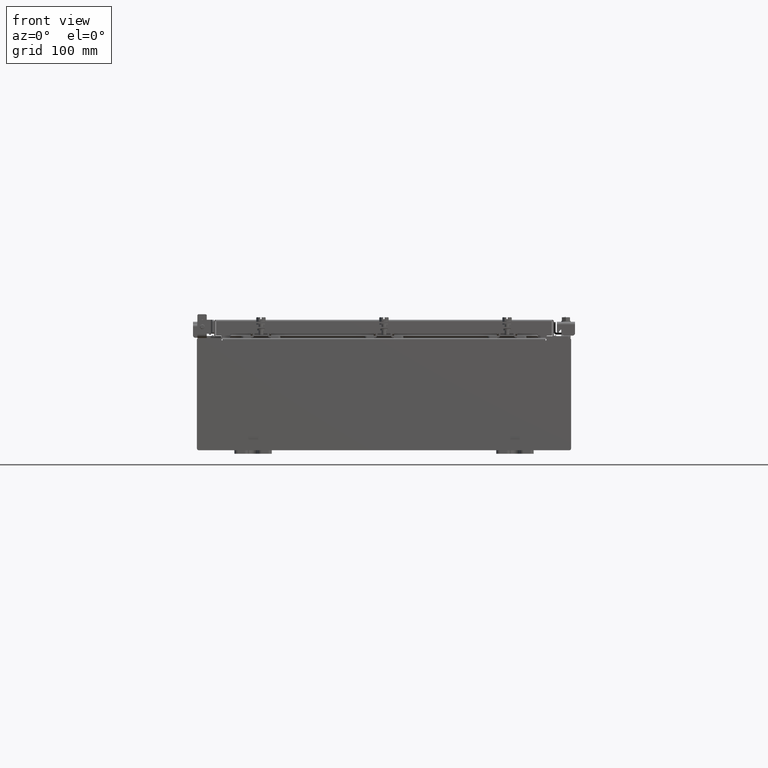
[diagram: clean part render]
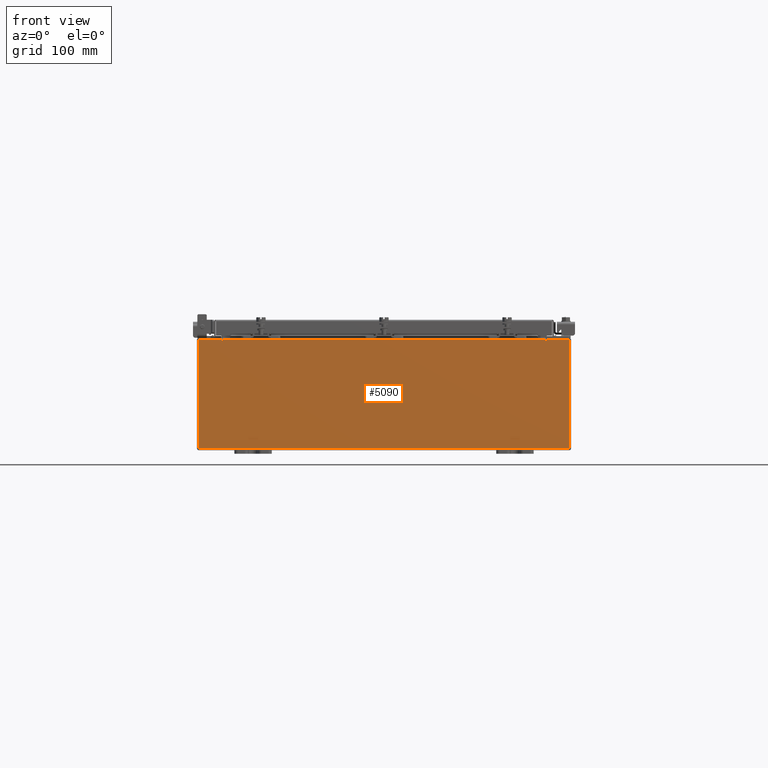
[diagram: same view with one face highlighted and labeled with its STEP entity id]
A machine part, front view. The second image highlights one B-rep face of the part: STEP entity #5090.
In plain terms, the highlighted planar face has unit normal (-0, 1, -0).
Its self-contained STEP definition (entity closure, byte-faithful):
#66 = CARTESIAN_POINT ( 'NONE',  ( -8.674549999999996400, -0.0000000000000000000, 0.0000000000000000000 ) ) ;
#95 = DIRECTION ( 'NONE',  ( 0.0000000000000000000, 0.0000000000000000000, 1.000000000000000000 ) ) ;
#1031 = EDGE_LOOP ( 'NONE', ( #14681, #19336, #18826, #15047, #22580, #20356, #11868, #18761, #17356, #20088, #7404, #10761 ) ) ;
#1147 = CIRCLE ( 'NONE', #15419, 0.01867500000000003900 ) ;
#1174 = EDGE_CURVE ( 'NONE', #9935, #20036, #18852, .T. ) ;
#1322 = CARTESIAN_POINT ( 'NONE',  ( -8.637200000000000000, 1.024442997624098700E-016, 2.912300000000000600 ) ) ;
#1450 = LINE ( 'NONE', #9222, #10359 ) ;
#1736 = VERTEX_POINT ( 'NONE', #20173 ) ;
#2021 = DIRECTION ( 'NONE',  ( 0.0000000000000000000, 0.0000000000000000000, -1.000000000000000000 ) ) ;
#2081 = LINE ( 'NONE', #1322, #20516 ) ;
#2098 = EDGE_CURVE ( 'NONE', #14059, #20036, #10599, .T. ) ;
#2452 = LINE ( 'NONE', #12720, #3009 ) ;
#2638 = VECTOR ( 'NONE', #7431, 39.37007874015748100 ) ;
#3009 = VECTOR ( 'NONE', #2021, 39.37007874015748100 ) ;
#3197 = LINE ( 'NONE', #5600, #2638 ) ;
#3630 = CARTESIAN_POINT ( 'NONE',  ( 8.674550000000000000, 0.0000000000000000000, 2.874950000000000600 ) ) ;
#3765 = CARTESIAN_POINT ( 'NONE',  ( 8.637200000000000000, 0.0000000000000000000, 2.912300000000000600 ) ) ;
#3769 = LINE ( 'NONE', #5876, #8538 ) ;
#3933 = CARTESIAN_POINT ( 'NONE',  ( 9.925300000000000000, 0.0000000000000000000, -2.925299999999999600 ) ) ;
#4175 = CARTESIAN_POINT ( 'NONE',  ( 0.0000000000000000000, 0.0000000000000000000, 0.0000000000000000000 ) ) ;
#4790 = CARTESIAN_POINT ( 'NONE',  ( -9.925300000000000000, 0.0000000000000000000, 2.925300000000000500 ) ) ;
#5090 = ADVANCED_FACE ( 'NONE', ( #14145 ), #20268, .F. ) ;
#5130 = VECTOR ( 'NONE', #12584, 39.37007874015748100 ) ;
#5330 = EDGE_CURVE ( 'NONE', #16082, #9935, #18064, .T. ) ;
#5360 = VERTEX_POINT ( 'NONE', #15940 ) ;
#5600 = CARTESIAN_POINT ( 'NONE',  ( 9.925300000000000000, 0.0000000000000000000, 2.925300000000000500 ) ) ;
#5850 = VECTOR ( 'NONE', #10355, 39.37007874015748100 ) ;
#5876 = CARTESIAN_POINT ( 'NONE',  ( 8.674549999999813500, -0.0000000000000000000, -5.647877341832707700E-013 ) ) ;
#5929 = VERTEX_POINT ( 'NONE', #18670 ) ;
#6319 = VERTEX_POINT ( 'NONE', #19945 ) ;
#6324 = CARTESIAN_POINT ( 'NONE',  ( 8.655875000000000000, 0.0000000000000000000, 2.874950000000000600 ) ) ;
#7404 = ORIENTED_EDGE ( 'NONE', *, *, #7987, .T. ) ;
#7431 = DIRECTION ( 'NONE',  ( 0.0000000000000000000, 0.0000000000000000000, -1.000000000000000000 ) ) ;
#7702 = DIRECTION ( 'NONE',  ( -6.510859170600007400E-014, 0.0000000000000000000, -1.000000000000000000 ) ) ;
#7987 = EDGE_CURVE ( 'NONE', #10938, #14059, #12085, .T. ) ;
#8143 = DIRECTION ( 'NONE',  ( 0.0000000000000000000, 0.0000000000000000000, -1.000000000000000000 ) ) ;
#8491 = VECTOR ( 'NONE', #95, 39.37007874015748100 ) ;
#8538 = VECTOR ( 'NONE', #7702, 39.37007874015748100 ) ;
#8555 = EDGE_CURVE ( 'NONE', #15233, #10938, #1450, .T. ) ;
#8761 = DIRECTION ( 'NONE',  ( -0.0000000000000000000, 1.000000000000000000, -0.0000000000000000000 ) ) ;
#9222 = CARTESIAN_POINT ( 'NONE',  ( -9.925300000000000000, 0.0000000000000000000, -2.925299999999999600 ) ) ;
#9686 = VERTEX_POINT ( 'NONE', #3765 ) ;
#9935 = VERTEX_POINT ( 'NONE', #14332 ) ;
#10355 = DIRECTION ( 'NONE',  ( 1.000000000000000000, 0.0000000000000000000, 0.0000000000000000000 ) ) ;
#10359 = VECTOR ( 'NONE', #21749, 39.37007874015748100 ) ;
#10599 = LINE ( 'NONE', #12096, #5850 ) ;
#10761 = ORIENTED_EDGE ( 'NONE', *, *, #2098, .T. ) ;
#10938 = VERTEX_POINT ( 'NONE', #19213 ) ;
#11235 = AXIS2_PLACEMENT_3D ( 'NONE', #4175, #22091, #11352 ) ;
#11305 = CARTESIAN_POINT ( 'NONE',  ( -9.925300000000000000, 0.0000000000000000000, 2.925300000000000500 ) ) ;
#11352 = DIRECTION ( 'NONE',  ( 0.0000000000000000000, -0.0000000000000000000, -1.000000000000000000 ) ) ;
#11519 = VECTOR ( 'NONE', #22058, 39.37007874015748100 ) ;
#11868 = ORIENTED_EDGE ( 'NONE', *, *, #16339, .F. ) ;
#11957 = EDGE_CURVE ( 'NONE', #6319, #1736, #18183, .T. ) ;
#12085 = LINE ( 'NONE', #11305, #11519 ) ;
#12096 = CARTESIAN_POINT ( 'NONE',  ( -9.925300000000000000, 0.0000000000000000000, 2.925300000000000500 ) ) ;
#12107 = EDGE_CURVE ( 'NONE', #14274, #5929, #1147, .T. ) ;
#12584 = DIRECTION ( 'NONE',  ( 0.0000000000000000000, 0.0000000000000000000, 1.000000000000000000 ) ) ;
#12720 = CARTESIAN_POINT ( 'NONE',  ( -8.637199999999996400, -0.0000000000000000000, 0.0000000000000000000 ) ) ;
#12911 = DIRECTION ( 'NONE',  ( 1.000000000000000000, 0.0000000000000000000, 0.0000000000000000000 ) ) ;
#13203 = AXIS2_PLACEMENT_3D ( 'NONE', #19458, #8761, #21276 ) ;
#14059 = VERTEX_POINT ( 'NONE', #4790 ) ;
#14145 = FACE_OUTER_BOUND ( 'NONE', #1031, .T. ) ;
#14274 = VERTEX_POINT ( 'NONE', #3630 ) ;
#14332 = CARTESIAN_POINT ( 'NONE',  ( -8.674549999999996400, 0.0000000000000000000, 2.874950000000000600 ) ) ;
#14356 = LINE ( 'NONE', #21445, #8491 ) ;
#14681 = ORIENTED_EDGE ( 'NONE', *, *, #1174, .F. ) ;
#14693 = CARTESIAN_POINT ( 'NONE',  ( -9.925300000000000000, 0.0000000000000000000, 2.925300000000000500 ) ) ;
#15047 = ORIENTED_EDGE ( 'NONE', *, *, #20917, .T. ) ;
#15129 = EDGE_CURVE ( 'NONE', #5360, #16082, #2452, .T. ) ;
#15233 = VERTEX_POINT ( 'NONE', #3933 ) ;
#15419 = AXIS2_PLACEMENT_3D ( 'NONE', #6324, #18817, #8143 ) ;
#15940 = CARTESIAN_POINT ( 'NONE',  ( -8.637199999999996400, 1.024442997624098700E-016, 2.912300000000000600 ) ) ;
#16082 = VERTEX_POINT ( 'NONE', #18767 ) ;
#16339 = EDGE_CURVE ( 'NONE', #6319, #14274, #3769, .T. ) ;
#16929 = EDGE_CURVE ( 'NONE', #1736, #15233, #3197, .T. ) ;
#17356 = ORIENTED_EDGE ( 'NONE', *, *, #16929, .T. ) ;
#17472 = DIRECTION ( 'NONE',  ( 1.000000000000000000, 0.0000000000000000000, 0.0000000000000000000 ) ) ;
#18064 = CIRCLE ( 'NONE', #13203, 0.01867500000000003900 ) ;
#18183 = LINE ( 'NONE', #14693, #21844 ) ;
#18670 = CARTESIAN_POINT ( 'NONE',  ( 8.637200000000000000, 0.0000000000000000000, 2.874950000000000600 ) ) ;
#18761 = ORIENTED_EDGE ( 'NONE', *, *, #11957, .T. ) ;
#18767 = CARTESIAN_POINT ( 'NONE',  ( -8.637199999999996400, -0.0000000000000000000, 2.874950000000000600 ) ) ;
#18817 = DIRECTION ( 'NONE',  ( -0.0000000000000000000, 1.000000000000000000, -0.0000000000000000000 ) ) ;
#18826 = ORIENTED_EDGE ( 'NONE', *, *, #15129, .F. ) ;
#18852 = LINE ( 'NONE', #66, #5130 ) ;
#19213 = CARTESIAN_POINT ( 'NONE',  ( -9.925300000000000000, 0.0000000000000000000, -2.925299999999999600 ) ) ;
#19336 = ORIENTED_EDGE ( 'NONE', *, *, #5330, .F. ) ;
#19458 = CARTESIAN_POINT ( 'NONE',  ( -8.655874999999996400, 0.0000000000000000000, 2.874950000000000600 ) ) ;
#19831 = EDGE_CURVE ( 'NONE', #5929, #9686, #14356, .T. ) ;
#19945 = CARTESIAN_POINT ( 'NONE',  ( 8.674550000000001800, 0.0000000000000000000, 2.925300000000000500 ) ) ;
#20036 = VERTEX_POINT ( 'NONE', #22380 ) ;
#20088 = ORIENTED_EDGE ( 'NONE', *, *, #8555, .T. ) ;
#20173 = CARTESIAN_POINT ( 'NONE',  ( 9.925300000000000000, 0.0000000000000000000, 2.925300000000000500 ) ) ;
#20268 = PLANE ( 'NONE',  #11235 ) ;
#20356 = ORIENTED_EDGE ( 'NONE', *, *, #12107, .F. ) ;
#20516 = VECTOR ( 'NONE', #17472, 39.37007874015748100 ) ;
#20917 = EDGE_CURVE ( 'NONE', #5360, #9686, #2081, .T. ) ;
#21276 = DIRECTION ( 'NONE',  ( 0.0000000000000000000, 0.0000000000000000000, -1.000000000000000000 ) ) ;
#21445 = CARTESIAN_POINT ( 'NONE',  ( 8.637200000000000000, 0.0000000000000000000, 0.0000000000000000000 ) ) ;
#21749 = DIRECTION ( 'NONE',  ( -1.000000000000000000, -0.0000000000000000000, -0.0000000000000000000 ) ) ;
#21844 = VECTOR ( 'NONE', #12911, 39.37007874015748100 ) ;
#22058 = DIRECTION ( 'NONE',  ( -0.0000000000000000000, -0.0000000000000000000, 1.000000000000000000 ) ) ;
#22091 = DIRECTION ( 'NONE',  ( 0.0000000000000000000, -1.000000000000000000, 0.0000000000000000000 ) ) ;
#22380 = CARTESIAN_POINT ( 'NONE',  ( -8.674549999999996400, 0.0000000000000000000, 2.925300000000000500 ) ) ;
#22580 = ORIENTED_EDGE ( 'NONE', *, *, #19831, .F. ) ;